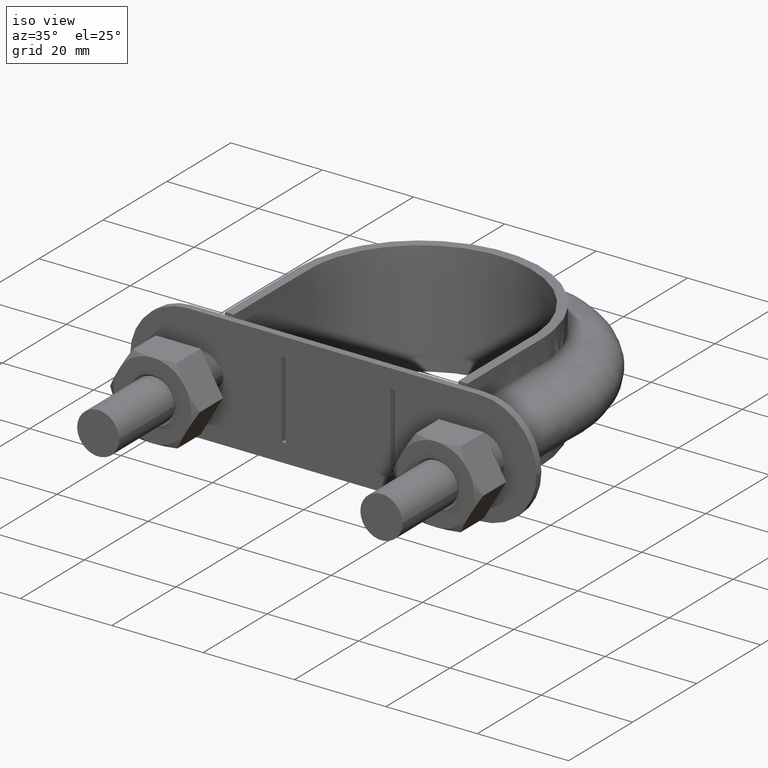
[diagram: clean part render]
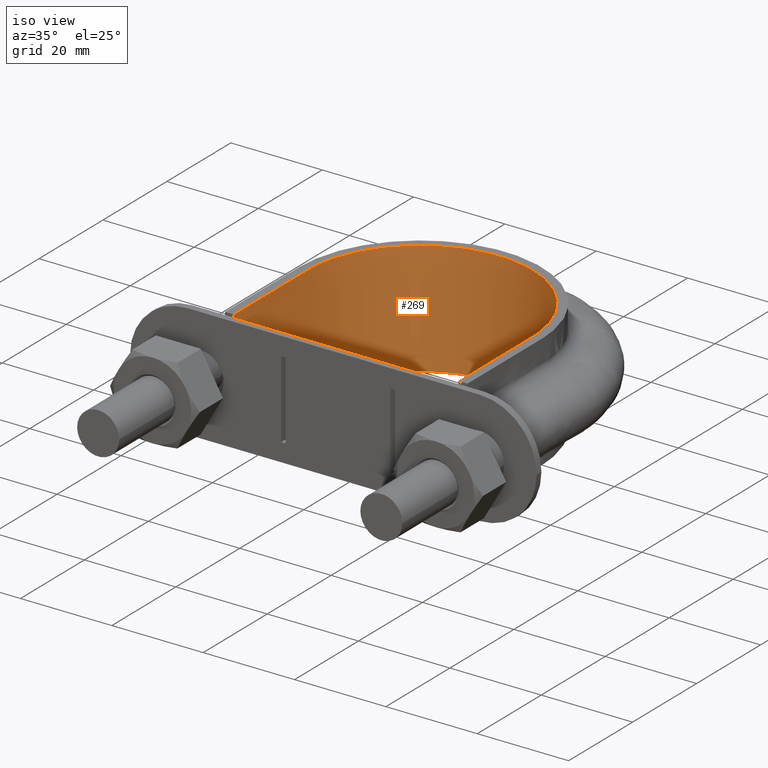
[diagram: same view with one face highlighted and labeled with its STEP entity id]
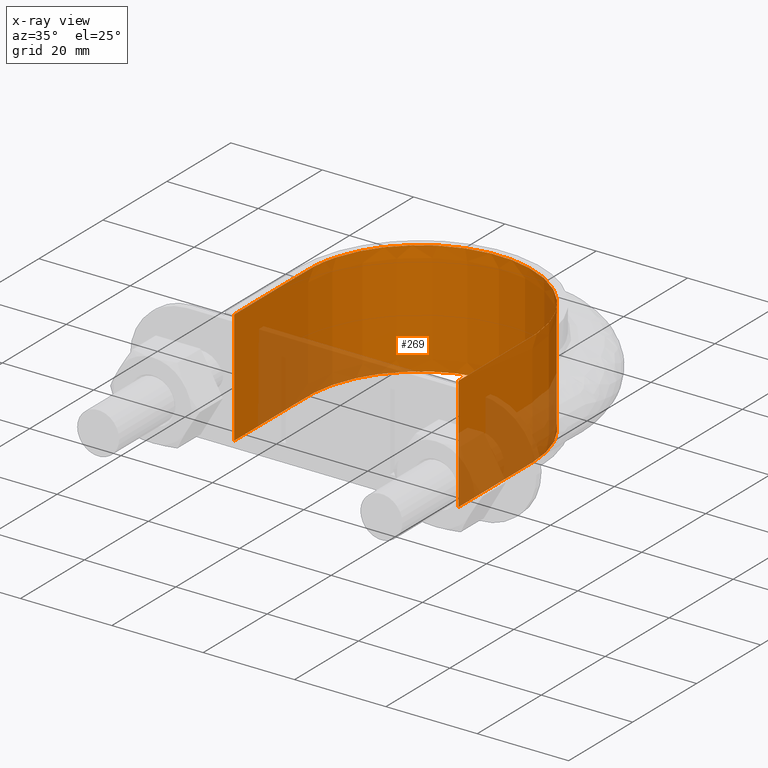
[diagram: x-ray of the same camera — body ghosted, the highlighted face saturated]
A machine part, iso view. The second image highlights one B-rep face of the part: STEP entity #269.
The next image is the same camera in x-ray: the body ghosted, the highlighted face saturated — about 27% of this face is hidden behind the body in this view.
In plain terms, the highlighted face is a SurfaceOfExtrusion surface.
Its self-contained STEP definition (entity closure, byte-faithful):
#269 = ADVANCED_FACE( '', ( #387 ), #388, .T. );
#387 = FACE_OUTER_BOUND( '', #644, .T. );
#388 = SURFACE_OF_LINEAR_EXTRUSION( '', #645, #646 );
#644 = EDGE_LOOP( '', ( #1736, #1737, #1738, #1739 ) );
#645 = B_SPLINE_CURVE_WITH_KNOTS( '', 3, ( #1740, #1741, #1742, #1743, #1744, #1745, #1746, #1747, #1748, #1749, #1750, #1751, #1752, #1753, #1754, #1755, #1756 ), .UNSPECIFIED., .F., .F., ( 4, 3, 1, 1, 1, 1, 1, 1, 1, 3, 4 ), ( -7.85424354243542, -7.00000000000000, -6.50000000000000, -6.00000000000000, -5.00000000000000, -4.00000000000000, -3.00000000000000, -2.00000000000000, -1.50000000000000, -1.00000000000000, -0.145756457564576 ), .UNSPECIFIED. );
#646 = VECTOR( '', #1757, 1000.00000000000 );
#1736 = ORIENTED_EDGE( '', *, *, #2546, .T. );
#1737 = ORIENTED_EDGE( '', *, *, #2555, .T. );
#1738 = ORIENTED_EDGE( '', *, *, #2552, .F. );
#1739 = ORIENTED_EDGE( '', *, *, #2556, .T. );
#1740 = CARTESIAN_POINT( '', ( 24.5500000000000, 33.3000000000000, 12.5000100000910 ) );
#1741 = CARTESIAN_POINT( '', ( 24.5500000000000, 41.0166666666667, 12.5000100000910 ) );
#1742 = CARTESIAN_POINT( '', ( 24.5500000000000, 48.7333333333333, 12.5000100000910 ) );
#1743 = CARTESIAN_POINT( '', ( 24.5500000000000, 56.4500000000000, 12.5000100000910 ) );
#1744 = CARTESIAN_POINT( '', ( 24.5500000000000, 58.5780025041717, 12.5000100000910 ) );
#1745 = CARTESIAN_POINT( '', ( 23.9738358905282, 62.8798607773325, 12.5000100000910 ) );
#1746 = CARTESIAN_POINT( '', ( 20.6884777838097, 70.8633071998794, 12.5000100000910 ) );
#1747 = CARTESIAN_POINT( '', ( 12.8483754366917, 78.7059313144219, 12.5000100000910 ) );
#1748 = CARTESIAN_POINT( '', ( 1.69986719242917E-014, 82.1470343427890, 12.5000100000910 ) );
#1749 = CARTESIAN_POINT( '', ( -12.8483754366917, 78.7059313144219, 12.5000100000910 ) );
#1750 = CARTESIAN_POINT( '', ( -20.6884777838097, 70.8633071998795, 12.5000100000910 ) );
#1751 = CARTESIAN_POINT( '', ( -23.9738358905281, 62.8798607773325, 12.5000100000910 ) );
#1752 = CARTESIAN_POINT( '', ( -24.5500000000000, 58.5780025041717, 12.5000100000910 ) );
#1753 = CARTESIAN_POINT( '', ( -24.5500000000000, 56.4500000000000, 12.5000100000910 ) );
#1754 = CARTESIAN_POINT( '', ( -24.5500000000000, 48.7333333333333, 12.5000100000910 ) );
#1755 = CARTESIAN_POINT( '', ( -24.5500000000000, 41.0166666666667, 12.5000100000910 ) );
#1756 = CARTESIAN_POINT( '', ( -24.5500000000000, 33.3000000000000, 12.5000100000910 ) );
#1757 = DIRECTION( '', ( 0.000000000000000, 0.000000000000000, -1.00000000000000 ) );
#2546 = EDGE_CURVE( '', #2787, #2788, #2789, .T. );
#2552 = EDGE_CURVE( '', #2797, #2800, #2801, .T. );
#2555 = EDGE_CURVE( '', #2788, #2800, #2805, .F. );
#2556 = EDGE_CURVE( '', #2797, #2787, #2806, .T. );
#2787 = VERTEX_POINT( '', #3194 );
#2788 = VERTEX_POINT( '', #3195 );
#2789 = LINE( '', #3196, #3197 );
#2797 = VERTEX_POINT( '', #3246 );
#2800 = VERTEX_POINT( '', #3250 );
#2801 = LINE( '', #3251, #3252 );
#2805 = B_SPLINE_CURVE_WITH_KNOTS( '', 3, ( #3287, #3288, #3289, #3290, #3291, #3292, #3293, #3294, #3295, #3296, #3297, #3298, #3299, #3300, #3301, #3302, #3303 ), .UNSPECIFIED., .F., .F., ( 4, 3, 1, 1, 1, 1, 1, 1, 1, 3, 4 ), ( -7.85424354243542, -7.00000000000000, -6.50000000000000, -6.00000000000000, -5.00000000000000, -4.00000000000000, -3.00000000000000, -2.00000000000000, -1.50000000000000, -1.00000000000000, -0.145756457564576 ), .UNSPECIFIED. );
#2806 = B_SPLINE_CURVE_WITH_KNOTS( '', 3, ( #3304, #3305, #3306, #3307, #3308, #3309, #3310, #3311, #3312, #3313, #3314, #3315, #3316, #3317, #3318, #3319, #3320, #3321, #3322, #3323, #3324, #3325, #3326, #3327, #3328, #3329, #3330, #3331, #3332, #3333, #3334, #3335, #3336, #3337, #3338, #3339, #3340, #3341, #3342, #3343, #3344, #3345, #3346, #3347, #3348, #3349, #3350, #3351, #3352, #3353, #3354, #3355, #3356, #3357, #3358, #3359, #3360, #3361, #3362, #3363, #3364, #3365, #3366, #3367, #3368, #3369, #3370 ), .UNSPECIFIED., .F., .F., ( 4, 1, 2, 2, 2, 2, 2, 2, 2, 2, 2, 2, 2, 2, 2, 2, 2, 2, 2, 2, 2, 2, 2, 2, 2, 2, 2, 2, 2, 2, 2, 2, 1, 1, 4 ), ( 6.93889390390723E-018, 0.0154145326467006, 0.0231217989700509, 0.0250486155508884, 0.0269754321317260, 0.0308290652934011, 0.0346826984550763, 0.0366095150359138, 0.0385363316167514, 0.0423899647784265, 0.0443167813592640, 0.0462435979401016, 0.0500972311017767, 0.0520240476826142, 0.0539508642634518, 0.0578044974251269, 0.0597313140059645, 0.0616581305868021, 0.0655117637484772, 0.0674385803293148, 0.0693653969101523, 0.0732190300718275, 0.0751458466526650, 0.0770726632335026, 0.0809262963951777, 0.0828531129760153, 0.0847799295568528, 0.0924871958802030, 0.0944140124610406, 0.0963408290418781, 0.100194462203553, 0.102121278784391, 0.104048095365228, 0.107901728526903, 0.123316261173604 ), .UNSPECIFIED. );
#3194 = CARTESIAN_POINT( '', ( -24.5500000000000, 33.3000000000000, 12.5000000000000 ) );
#3195 = CARTESIAN_POINT( '', ( -24.5500000000000, 33.3000000000000, -12.5000000000000 ) );
#3196 = CARTESIAN_POINT( '', ( -24.5500000000000, 33.3000000000000, 12.5000100000910 ) );
#3197 = VECTOR( '', #4065, 1000.00000000000 );
#3246 = CARTESIAN_POINT( '', ( 24.5500000000000, 33.3000000000000, 12.5000000000000 ) );
#3250 = CARTESIAN_POINT( '', ( 24.5500000000000, 33.3000000000000, -12.5000000000000 ) );
#3251 = CARTESIAN_POINT( '', ( 24.5500000000000, 33.3000000000000, 12.5000100000910 ) );
#3252 = VECTOR( '', #4069, 1000.00000000000 );
#3287 = CARTESIAN_POINT( '', ( 24.5500000000000, 33.3000000000000, -12.5000000000000 ) );
#3288 = CARTESIAN_POINT( '', ( 24.5500000000000, 41.0166666666667, -12.5000000000000 ) );
#3289 = CARTESIAN_POINT( '', ( 24.5500000000000, 48.7333333333333, -12.5000000000000 ) );
#3290 = CARTESIAN_POINT( '', ( 24.5500000000000, 56.4500000000000, -12.5000000000000 ) );
#3291 = CARTESIAN_POINT( '', ( 24.5500000000000, 58.5780025041717, -12.5000000000000 ) );
#3292 = CARTESIAN_POINT( '', ( 23.9738358905282, 62.8798607773325, -12.5000000000000 ) );
#3293 = CARTESIAN_POINT( '', ( 20.6884777838097, 70.8633071998794, -12.5000000000000 ) );
#3294 = CARTESIAN_POINT( '', ( 12.8483754366917, 78.7059313144219, -12.5000000000000 ) );
#3295 = CARTESIAN_POINT( '', ( 1.69986719242917E-014, 82.1470343427890, -12.5000000000000 ) );
#3296 = CARTESIAN_POINT( '', ( -12.8483754366917, 78.7059313144219, -12.5000000000000 ) );
#3297 = CARTESIAN_POINT( '', ( -20.6884777838097, 70.8633071998795, -12.5000000000000 ) );
#3298 = CARTESIAN_POINT( '', ( -23.9738358905281, 62.8798607773325, -12.5000000000000 ) );
#3299 = CARTESIAN_POINT( '', ( -24.5500000000000, 58.5780025041717, -12.5000000000000 ) );
#3300 = CARTESIAN_POINT( '', ( -24.5500000000000, 56.4500000000000, -12.5000000000000 ) );
#3301 = CARTESIAN_POINT( '', ( -24.5500000000000, 48.7333333333333, -12.5000000000000 ) );
#3302 = CARTESIAN_POINT( '', ( -24.5500000000000, 41.0166666666667, -12.5000000000000 ) );
#3303 = CARTESIAN_POINT( '', ( -24.5500000000000, 33.3000000000000, -12.5000000000000 ) );
#3304 = CARTESIAN_POINT( '', ( 24.5500000000000, 33.3000000000000, 12.5000000000000 ) );
#3305 = CARTESIAN_POINT( '', ( 24.5500000000000, 38.4384221999800, 12.5000000000000 ) );
#3306 = CARTESIAN_POINT( '', ( 24.5500000000000, 46.1460554999500, 12.5000000000000 ) );
#3307 = CARTESIAN_POINT( '', ( 24.5500000000000, 53.8536887999200, 12.5000000000000 ) );
#3308 = CARTESIAN_POINT( '', ( 24.5500000000000, 57.0652026749075, 12.5000000000000 ) );
#3309 = CARTESIAN_POINT( '', ( 24.5252751330927, 57.7072641688935, 12.5000000000000 ) );
#3310 = CARTESIAN_POINT( '', ( 24.4234462537603, 58.9908760077758, 12.5000000000000 ) );
#3311 = CARTESIAN_POINT( '', ( 24.3467657946690, 59.6342202589336, 12.5000000000000 ) );
#3312 = CARTESIAN_POINT( '', ( 24.0418819320212, 61.5512040485105, 12.5000000000000 ) );
#3313 = CARTESIAN_POINT( '', ( 23.7423938741594, 62.7980756143651, 12.5000000000000 ) );
#3314 = CARTESIAN_POINT( '', ( 22.9567434107525, 65.2314557302550, 12.5000000000000 ) );
#3315 = CARTESIAN_POINT( '', ( 22.4705596365818, 66.4179573705316, 12.5000000000000 ) );
#3316 = CARTESIAN_POINT( '', ( 21.5925627875953, 68.1496193486760, 12.5000000000000 ) );
#3317 = CARTESIAN_POINT( '', ( 21.2766071075013, 68.7149736051725, 12.5000000000000 ) );
#3318 = CARTESIAN_POINT( '', ( 20.6053719022684, 69.8105348664257, 12.5000000000000 ) );
#3319 = CARTESIAN_POINT( '', ( 20.2492833691970, 70.3426982596920, 12.5000000000000 ) );
#3320 = CARTESIAN_POINT( '', ( 19.1215068537777, 71.8937876646727, 12.5000000000000 ) );
#3321 = CARTESIAN_POINT( '', ( 18.2907926568853, 72.8676826796255, 12.5000000000000 ) );
#3322 = CARTESIAN_POINT( '', ( 16.9250762587395, 74.2372481605127, 12.5000000000000 ) );
#3323 = CARTESIAN_POINT( '', ( 16.4483141734126, 74.6794580763296, 12.5000000000000 ) );
#3324 = CARTESIAN_POINT( '', ( 15.4703087185621, 75.5179842065182, 12.5000000000000 ) );
#3325 = CARTESIAN_POINT( '', ( 14.9674075928234, 75.9161548866917, 12.5000000000000 ) );
#3326 = CARTESIAN_POINT( '', ( 13.4174319314452, 77.0480315871901, 12.5000000000000 ) );
#3327 = CARTESIAN_POINT( '', ( 12.3291014903936, 77.7191271240917, 12.5000000000000 ) );
#3328 = CARTESIAN_POINT( '', ( 10.6113550739498, 78.5963928065052, 12.5000000000000 ) );
#3329 = CARTESIAN_POINT( '', ( 10.0221200459752, 78.8683847934331, 12.5000000000000 ) );
#3330 = CARTESIAN_POINT( '', ( 8.82789979738713, 79.3633140784713, 12.5000000000000 ) );
#3331 = CARTESIAN_POINT( '', ( 8.22453257139356, 79.5858617099620, 12.5000000000000 ) );
#3332 = CARTESIAN_POINT( '', ( 6.39627757875420, 80.1812145309662, 12.5000000000000 ) );
#3333 = CARTESIAN_POINT( '', ( 5.15338195845830, 80.4823089013905, 12.5000000000000 ) );
#3334 = CARTESIAN_POINT( '', ( 3.25266287101840, 80.7890954282830, 12.5000000000000 ) );
#3335 = CARTESIAN_POINT( '', ( 2.61299113566845, 80.8670713549403, 12.5000000000000 ) );
#3336 = CARTESIAN_POINT( '', ( 1.32093241036632, 80.9723885607186, 12.5000000000000 ) );
#3337 = CARTESIAN_POINT( '', ( 0.676406080425041, 80.9990466751685, 12.5000000000000 ) );
#3338 = CARTESIAN_POINT( '', ( -1.24870371014290, 81.0018313487211, 12.5000000000000 ) );
#3339 = CARTESIAN_POINT( '', ( -2.52265182528389, 80.9014678182981, 12.5000000000000 ) );
#3340 = CARTESIAN_POINT( '', ( -4.41989760294863, 80.6031174963141, 12.5000000000000 ) );
#3341 = CARTESIAN_POINT( '', ( -5.05001948103531, 80.4788821105621, 12.5000000000000 ) );
#3342 = CARTESIAN_POINT( '', ( -6.30559148152663, 80.1799222321459, 12.5000000000000 ) );
#3343 = CARTESIAN_POINT( '', ( -6.93138081059488, 80.0048019462484, 12.5000000000000 ) );
#3344 = CARTESIAN_POINT( '', ( -8.76889753233643, 79.4125614462542, 12.5000000000000 ) );
#3345 = CARTESIAN_POINT( '', ( -9.95225725658830, 78.9267801345634, 12.5000000000000 ) );
#3346 = CARTESIAN_POINT( '', ( -11.6646188489648, 78.0612380840055, 12.5000000000000 ) );
#3347 = CARTESIAN_POINT( '', ( -12.2248697137770, 77.7497158527538, 12.5000000000000 ) );
#3348 = CARTESIAN_POINT( '', ( -13.3236776153922, 77.0792985269674, 12.5000000000000 ) );
#3349 = CARTESIAN_POINT( '', ( -13.8646027205756, 76.7187643121761, 12.5000000000000 ) );
#3350 = CARTESIAN_POINT( '', ( -15.4323331862349, 75.5816103428784, 12.5000000000000 ) );
#3351 = CARTESIAN_POINT( '', ( -16.4066904175185, 74.7499313198934, 12.5000000000000 ) );
#3352 = CARTESIAN_POINT( '', ( -17.7664797273136, 73.3966709647585, 12.5000000000000 ) );
#3353 = CARTESIAN_POINT( '', ( -18.2026751411942, 72.9278462929921, 12.5000000000000 ) );
#3354 = CARTESIAN_POINT( '', ( -19.0403725195660, 71.9541411916241, 12.5000000000000 ) );
#3355 = CARTESIAN_POINT( '', ( -19.4425779981798, 71.4483024401624, 12.5000000000000 ) );
#3356 = CARTESIAN_POINT( '', ( -21.3557319354796, 68.8353834350349, 12.5000000000000 ) );
#3357 = CARTESIAN_POINT( '', ( -22.5176023500941, 66.5595033352519, 12.5000000000000 ) );
#3358 = CARTESIAN_POINT( '', ( -23.5216696114527, 63.4890361381941, 12.5000000000000 ) );
#3359 = CARTESIAN_POINT( '', ( -23.6990122608683, 62.8647462965356, 12.5000000000000 ) );
#3360 = CARTESIAN_POINT( '', ( -24.0024245935730, 61.6147239867792, 12.5000000000000 ) );
#3361 = CARTESIAN_POINT( '', ( -24.1294131227665, 60.9864283058243, 12.5000000000000 ) );
#3362 = CARTESIAN_POINT( '', ( -24.4371992964721, 59.0918170449201, 12.5000000000000 ) );
#3363 = CARTESIAN_POINT( '', ( -24.5457173567177, 57.8158968179808, 12.5000000000000 ) );
#3364 = CARTESIAN_POINT( '', ( -24.5519571685428, 55.8812155098233, 12.5000000000000 ) );
#3365 = CARTESIAN_POINT( '', ( -24.5500000000000, 55.2357852822296, 12.5000000000000 ) );
#3366 = CARTESIAN_POINT( '', ( -24.5500000000000, 53.9454449715102, 12.5000000000000 ) );
#3367 = CARTESIAN_POINT( '', ( -24.5500000000000, 52.0099345054311, 12.5000000000000 ) );
#3368 = CARTESIAN_POINT( '', ( -24.5500000000000, 44.9130627964746, 12.5000000000000 ) );
#3369 = CARTESIAN_POINT( '', ( -24.5500000000000, 38.4613612428775, 12.5000000000000 ) );
#3370 = CARTESIAN_POINT( '', ( -24.5500000000000, 33.3000000000001, 12.5000000000000 ) );
#4065 = DIRECTION( '', ( 0.000000000000000, 0.000000000000000, -1.00000000000000 ) );
#4069 = DIRECTION( '', ( 0.000000000000000, 0.000000000000000, -1.00000000000000 ) );